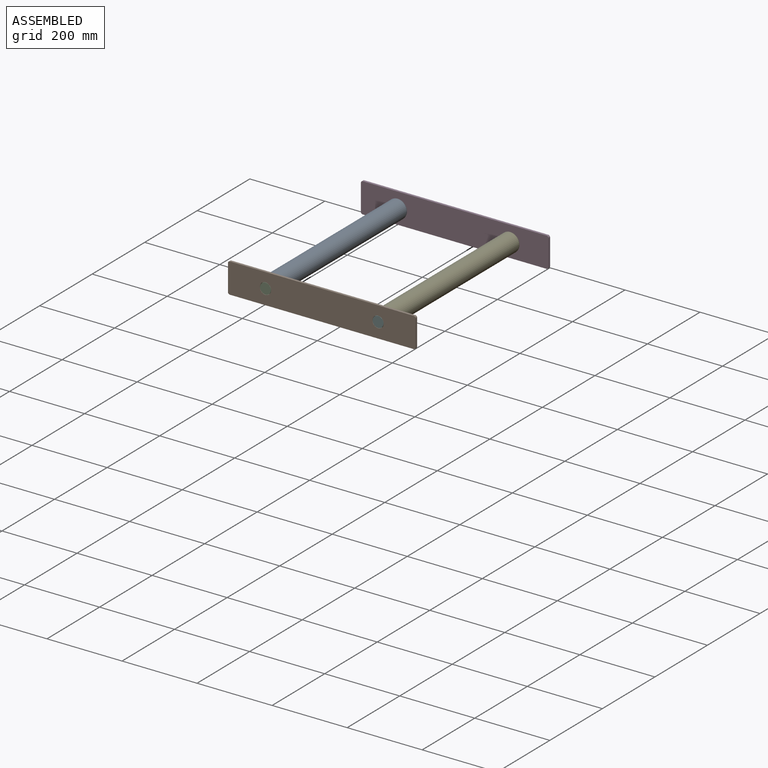
[diagram: assembled view]
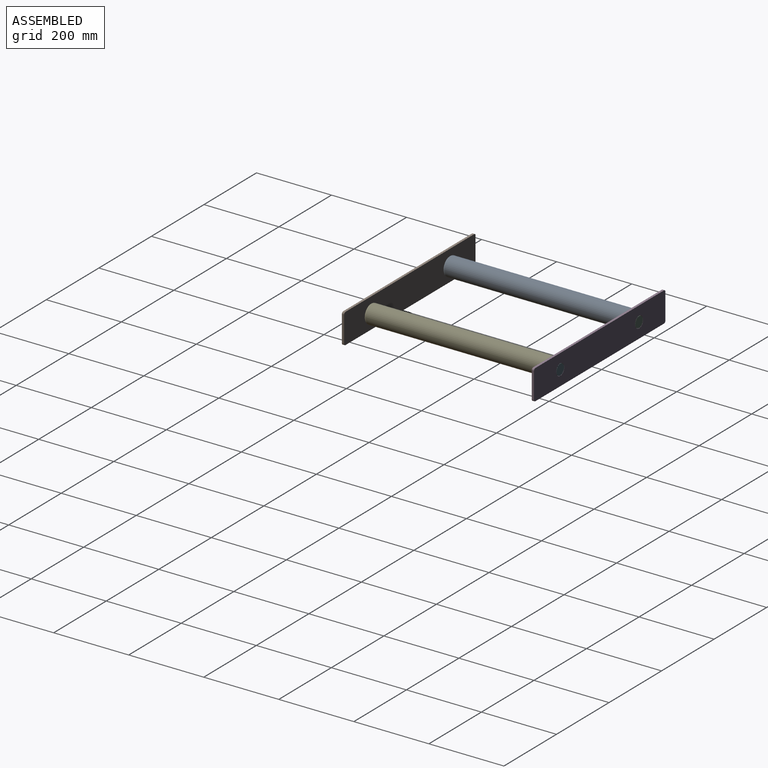
[diagram: assembled view, second angle]
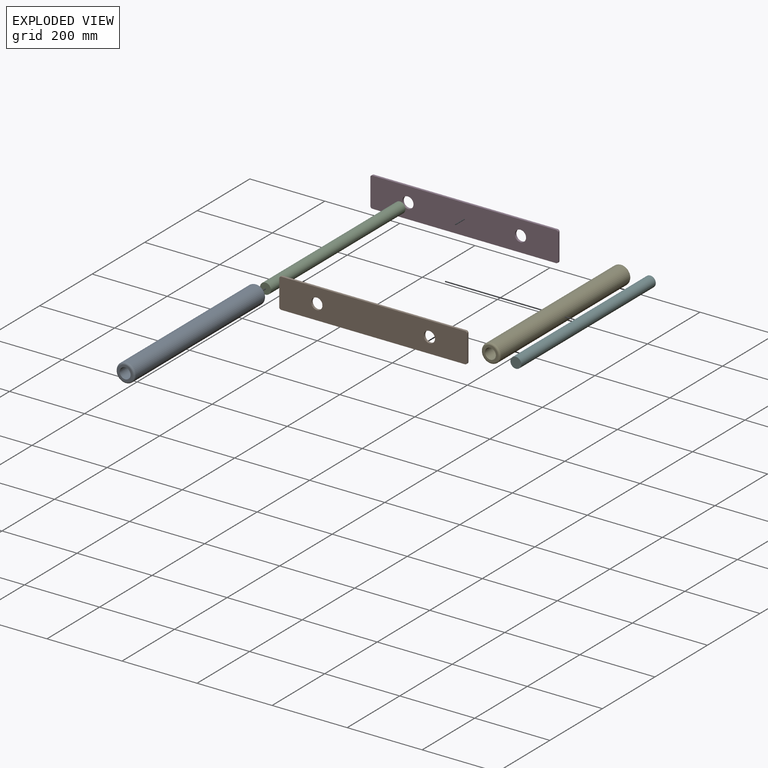
[diagram: exploded view]
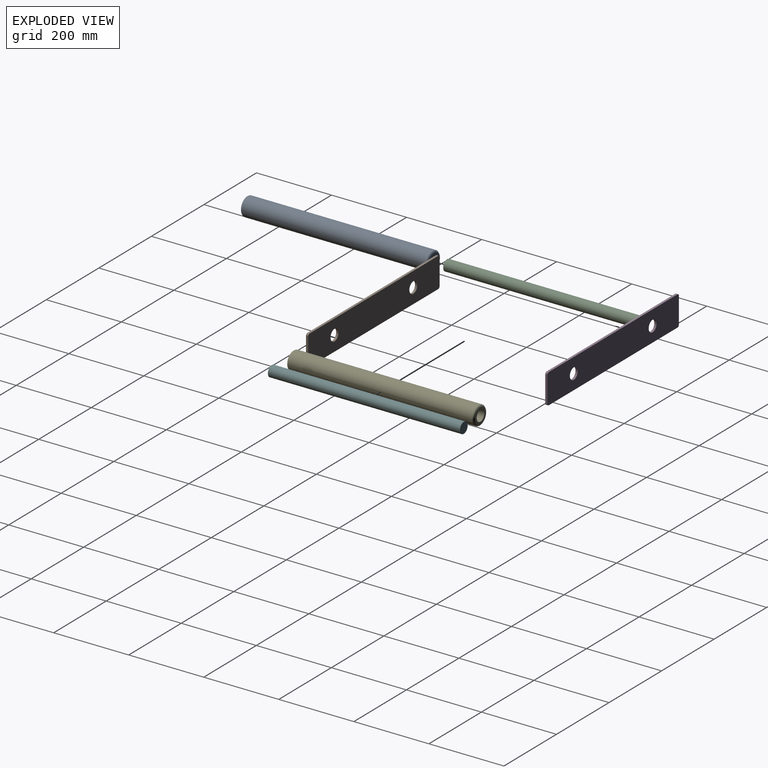
[diagram: exploded view, second angle]
ASSEMBLY  parts=6 mates=4
PART A: 6 faces, bbox 54.1x500x54.1 mm
  f0: cylinder r=14.5mm len=500mm, axis (0,-1,0), area 45553.1mm2, adj f2,f3
  f1: cylinder r=25mm len=490mm, axis (0,-1,0), area 76969mm2, adj f4,f5
  f2: plane 40x40mm, normal (0,1,0), area 596.1mm2, adj f0,f5
  f3: plane 40x40mm, normal (0,-1,0), area 596.1mm2, adj f0,f4
  f4: torus R=20mm, axis (0,-1,0), area 1144mm2, adj f1,f3
  f5: torus R=20mm, axis (0,-1,0), area 1144mm2, adj f1,f2
PART B: 12 faces, bbox 500x6x80 mm
  f0: plane 490x6mm, normal (0,0,1), area 2940mm2, adj f1,f9,f10,f11
  f1: cylinder r=5mm len=6mm, axis (0,-1,0), area 47.1mm2, adj f0,f2,f10,f11
  f2: plane 70x6mm, normal (-1,0,0), area 420mm2, adj f1,f3,f10,f11
  f3: cylinder r=5mm len=6mm, axis (0,-1,0), area 47.1mm2, adj f2,f4,f10,f11
  f4: plane 490x6mm, normal (0,0,-1), area 2940mm2, adj f3,f5,f10,f11
  f5: cylinder r=5mm len=6mm, axis (0,-1,0), area 47.1mm2, adj f4,f6,f10,f11
  f6: plane 70x6mm, normal (1,0,0), area 420mm2, adj f5,f9,f10,f11
  f7: cylinder r=15mm len=30mm, axis (0,-1,0), area 565.5mm2, adj f10,f11
  f8: cylinder r=15mm len=30mm, axis (0,-1,0), area 565.5mm2, adj f10,f11
  f9: cylinder r=5mm len=6mm, axis (0,-1,0), area 47.1mm2, adj f0,f6,f10,f11
  f10: plane 500x80mm, normal (0,1,0), area 38564.8mm2, adj f0,f1,f2,f3,f4,f5,f6,f7
  f11: plane 500x80mm, normal (0,-1,0), area 38564.8mm2, adj f0,f1,f2,f3,f4,f5,f6,f7
PART C: 3 faces, bbox 29x512x29 mm
  f0: cylinder r=14.5mm len=512mm, axis (0,-1,0), area 46646.4mm2, adj f1,f2
  f1: plane 29x29mm, normal (0,1,0), area 660.5mm2, adj f0
  f2: plane 29x29mm, normal (0,-1,0), area 660.5mm2, adj f0
PART D: same geometry as B
PART E: same geometry as A
PART F: same geometry as C
PLACE A t=(-176.87,-309.72,0.22)mm
PLACE B t=(-38.1,-315.72,-39.78)mm
PLACE C t=(-176.87,-309.72,0.22)mm
PLACE D rot(axis=(1,0,0),180deg) t=(-38.1,196.28,40.22)mm
PLACE E t=(123.13,-309.72,0.22)mm
PLACE F t=(123.13,-309.72,0.22)mm
MATE fastened C.f0 <-> D.f7  axis (0,1,0) through (-176.87,196.28,0.22)mm
MATE fastened E.f1 <-> F.f0  axis (0,-1,0) through (123.13,-59.72,0.22)mm
MATE fastened F.f0 <-> B.f8  axis (0,-1,0) through (123.13,-315.72,0.22)mm
MATE fastened A.f1 <-> C.f0  axis (0,-1,0) through (-176.87,-59.72,0.22)mm
